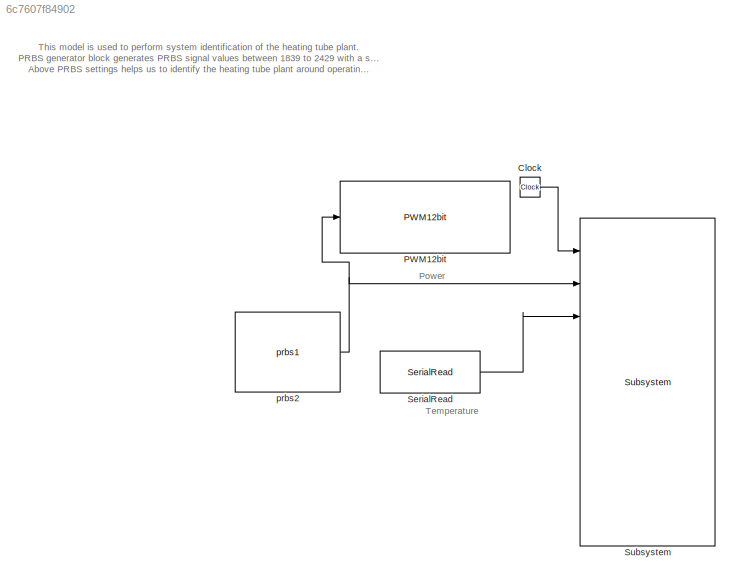
MODEL slx_6c7607f84902
KIND model
CONFIG AbsTol = auto
CONFIG EnableMultiTasking = on
CONFIG FixedStep = 1
CONFIG MaxStep = auto
CONFIG MinStep = auto
CONFIG RelTol = 1e-3
CONFIG SampleTimeConstraint = Unconstrained
CONFIG Solver = FixedStepDiscrete
CONFIG SolverName = FixedStepDiscrete
CONFIG StartTime = 0.0
CONFIG StopTime = inf
BLOCK [Clock] Clock
BLOCK [Reference] PWM12bit  REF=EEE481Arduino/PWM12bit
  Ports = [1]
  SourceBlock = EEE481Arduino/PWM12bit
BLOCK [Reference] SerialRead  REF=EEE481Arduino/SerialRead
  Ports = [0, 1]
  SourceBlock = EEE481Arduino/SerialRead
BLOCK [Reference] Subsystem  REF=EEE481Arduino/Subsystem
  Ports = [9, 3]
  SourceBlock = EEE481Arduino/Subsystem
BLOCK [Reference] prbs2  REF=EEE481Arduino/prbs1
  Ports = [0, 1]
  SourceBlock = EEE481Arduino/prbs1
ANNOTATION (root): This model is used to perform system identification of the heating tube plant. PRBS generator block generates PRBS signal values between 1839 to 2429 with a switching time of 50 seconds. Above PRBS settings helps us to identify the heating tube plant around operating temperature of 800
ANNOTATION (root): Power
ANNOTATION (root): Temperature
LINE Clock:1 -> Subsystem:1
LINE SerialRead:1 -> Subsystem:3
NET prbs2:1 -> PWM12bit:1, Subsystem:2
note: NET lines group one-source signal fan-out (src -> all destinations, sorted); 1:1 wires keep LINE
